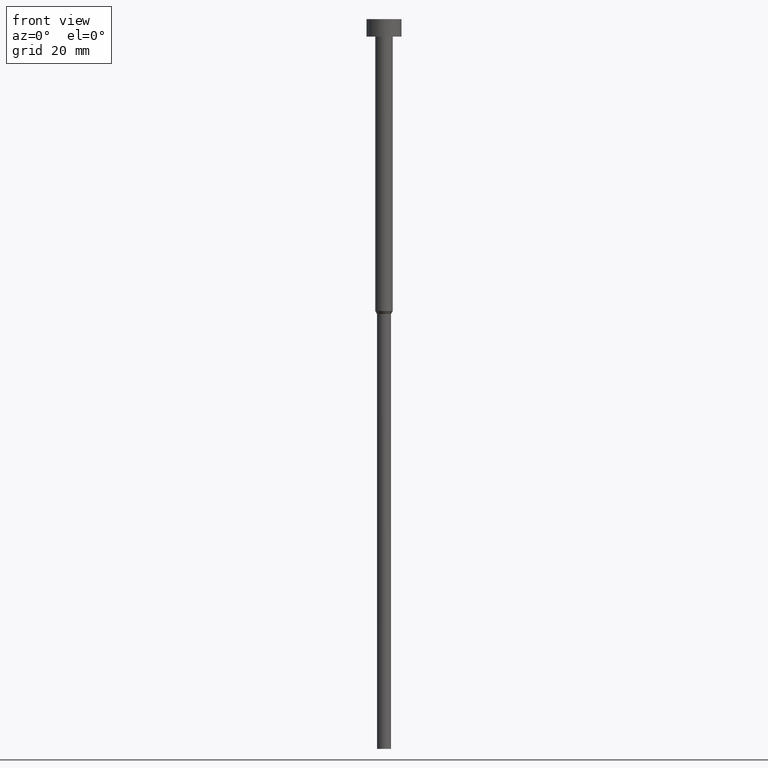
[diagram: clean part render]
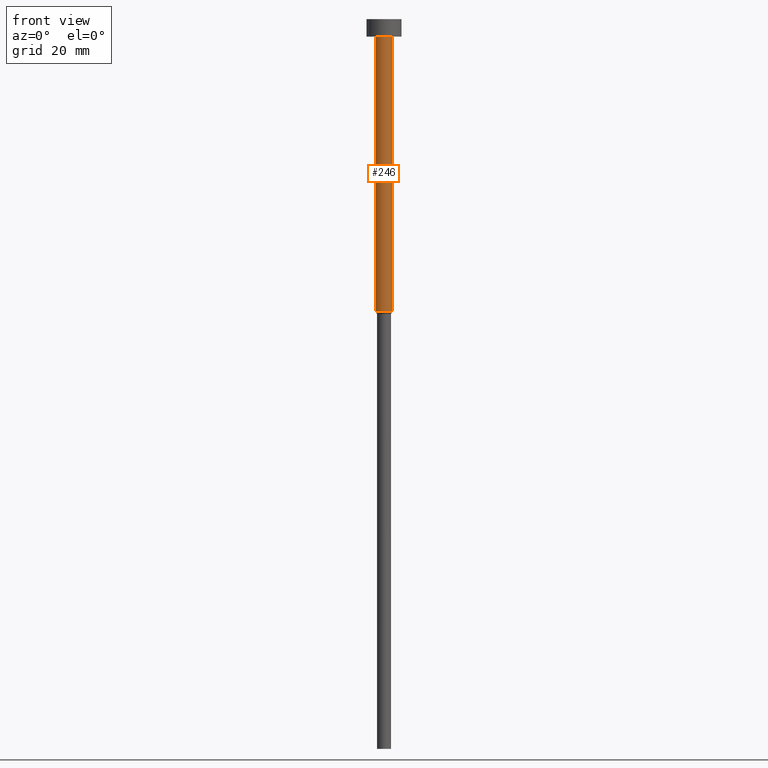
[diagram: same view with one face highlighted and labeled with its STEP entity id]
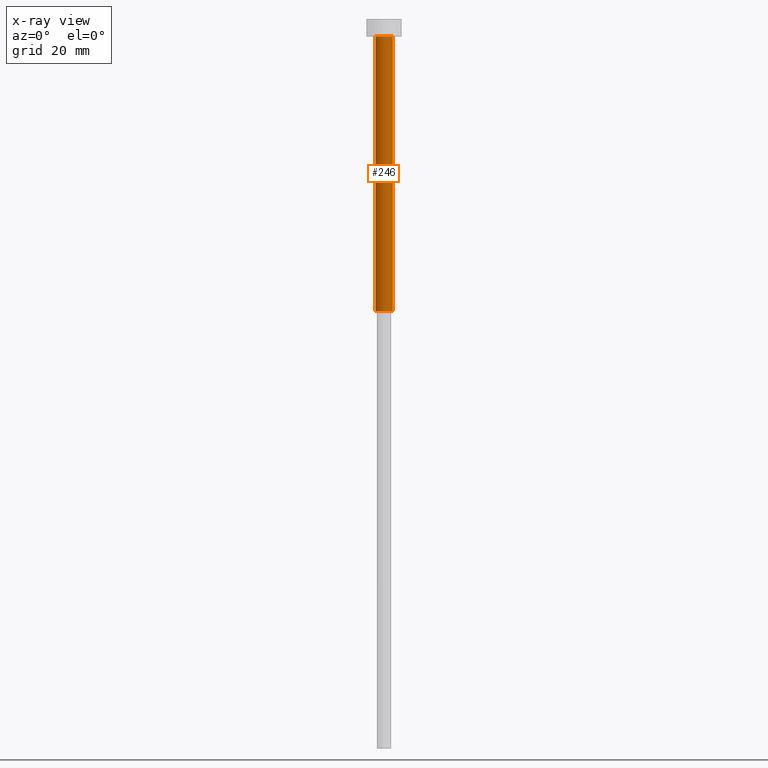
[diagram: x-ray of the same camera — body ghosted, the highlighted face saturated]
A machine part, front view. The second image highlights one B-rep face of the part: STEP entity #246.
The next image is the same camera in x-ray: the body ghosted, the highlighted face saturated — about 0% of this face is hidden behind the body in this view.
In plain terms, the highlighted cylindrical surface (edge-blend (fillet) strip) has radius 1.5 mm, axis along (-0, -0, 1).
Its self-contained STEP definition (entity closure, byte-faithful):
#7 = VECTOR ( 'NONE', #93, 1000.000000000000000 ) ;
#8 = EDGE_CURVE ( 'NONE', #291, #344, #237, .T. ) ;
#19 = CIRCLE ( 'NONE', #165, 1.500000000000000000 ) ;
#34 = CARTESIAN_POINT ( 'NONE',  ( 1.500000000000000000, 0.000000000000000000, 0.000000000000000000 ) ) ;
#36 = EDGE_CURVE ( 'NONE', #344, #180, #138, .T. ) ;
#44 = DIRECTION ( 'NONE',  ( -0.000000000000000000, -0.000000000000000000, 1.000000000000000000 ) ) ;
#53 = CARTESIAN_POINT ( 'NONE',  ( 0.000000000000000000, 0.000000000000000000, -3.000000000000000888 ) ) ;
#75 = DIRECTION ( 'NONE',  ( 1.000000000000000000, 0.000000000000000000, 0.000000000000000000 ) ) ;
#93 = DIRECTION ( 'NONE',  ( -0.000000000000000000, -0.000000000000000000, 1.000000000000000000 ) ) ;
#100 = EDGE_LOOP ( 'NONE', ( #312, #342, #145, #150 ) ) ;
#116 = CARTESIAN_POINT ( 'NONE',  ( 0.000000000000000000, 0.000000000000000000, 0.000000000000000000 ) ) ;
#118 = DIRECTION ( 'NONE',  ( 1.000000000000000000, 0.000000000000000000, 0.000000000000000000 ) ) ;
#138 = CIRCLE ( 'NONE', #260, 1.500000000000000000 ) ;
#141 = VERTEX_POINT ( 'NONE', #305 ) ;
#144 = CYLINDRICAL_SURFACE ( 'NONE', #149, 1.500000000000000000 ) ;
#145 = ORIENTED_EDGE ( 'NONE', *, *, #314, .T. ) ;
#149 = AXIS2_PLACEMENT_3D ( 'NONE', #116, #44, #118 ) ;
#150 = ORIENTED_EDGE ( 'NONE', *, *, #36, .F. ) ;
#165 = AXIS2_PLACEMENT_3D ( 'NONE', #254, #326, #300 ) ;
#180 = VERTEX_POINT ( 'NONE', #189 ) ;
#189 = CARTESIAN_POINT ( 'NONE',  ( 1.500000000000000000, 0.000000000000000000, -3.000000000000000888 ) ) ;
#199 = EDGE_CURVE ( 'NONE', #291, #141, #19, .T. ) ;
#208 = VECTOR ( 'NONE', #292, 1000.000000000000000 ) ;
#237 = LINE ( 'NONE', #318, #7 ) ;
#244 = FACE_OUTER_BOUND ( 'NONE', #100, .T. ) ;
#246 = ADVANCED_FACE ( 'NONE', ( #244 ), #144, .T. ) ;
#254 = CARTESIAN_POINT ( 'NONE',  ( 0.000000000000000000, 0.000000000000000000, -50.00000000000000000 ) ) ;
#259 = CARTESIAN_POINT ( 'NONE',  ( -1.500000000000000000, 1.836970198721029934E-16, -3.000000000000000888 ) ) ;
#260 = AXIS2_PLACEMENT_3D ( 'NONE', #53, #352, #75 ) ;
#284 = LINE ( 'NONE', #34, #208 ) ;
#291 = VERTEX_POINT ( 'NONE', #308 ) ;
#292 = DIRECTION ( 'NONE',  ( -0.000000000000000000, -0.000000000000000000, 1.000000000000000000 ) ) ;
#300 = DIRECTION ( 'NONE',  ( 1.000000000000000000, 0.000000000000000000, 0.000000000000000000 ) ) ;
#305 = CARTESIAN_POINT ( 'NONE',  ( 1.500000000000000000, 0.000000000000000000, -50.00000000000000000 ) ) ;
#308 = CARTESIAN_POINT ( 'NONE',  ( -1.500000000000000000, 1.836970198721029934E-16, -50.00000000000000000 ) ) ;
#312 = ORIENTED_EDGE ( 'NONE', *, *, #8, .F. ) ;
#314 = EDGE_CURVE ( 'NONE', #141, #180, #284, .T. ) ;
#318 = CARTESIAN_POINT ( 'NONE',  ( -1.500000000000000000, 1.836970198721029934E-16, 0.000000000000000000 ) ) ;
#326 = DIRECTION ( 'NONE',  ( -0.000000000000000000, -0.000000000000000000, 1.000000000000000000 ) ) ;
#342 = ORIENTED_EDGE ( 'NONE', *, *, #199, .T. ) ;
#344 = VERTEX_POINT ( 'NONE', #259 ) ;
#352 = DIRECTION ( 'NONE',  ( -0.000000000000000000, -0.000000000000000000, 1.000000000000000000 ) ) ;